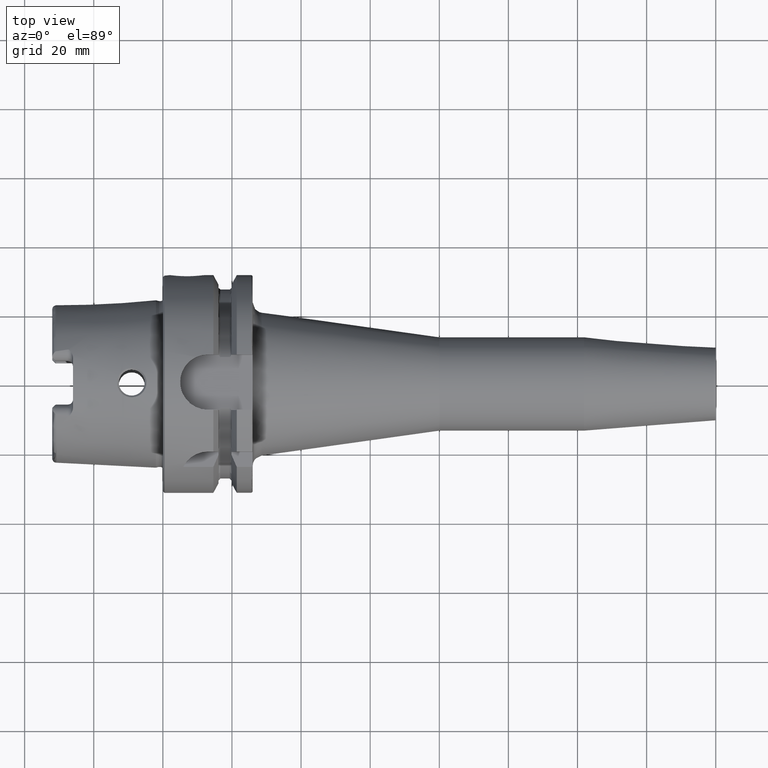
[diagram: clean part render]
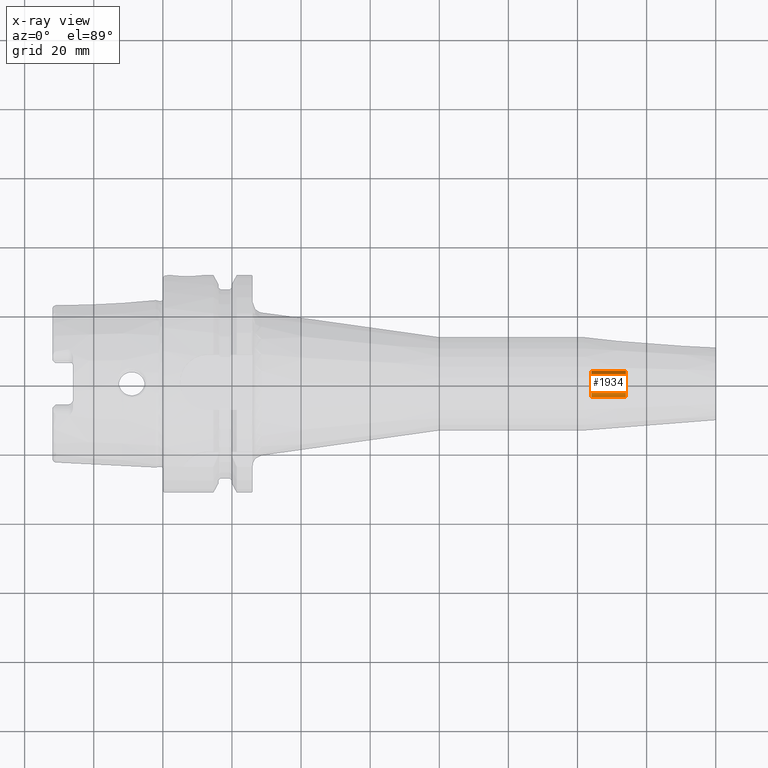
[diagram: x-ray — body ghosted, one internal face saturated and labeled with its STEP entity id]
A machine part, top view, then the same camera in x-ray: the body is ghosted and one INTERNAL B-rep face — a face not visible from any outside direction — is saturated and labeled: STEP entity #1934.
In plain terms, the highlighted cylindrical surface (bore or boss wall) has radius 3.775 mm, axis along (1, 0, 0).
Its self-contained STEP definition (entity closure, byte-faithful):
#99=CYLINDRICAL_SURFACE('',#2086,3.77500000000001);
#196=LINE('',#2964,#303);
#303=VECTOR('',#2367,3.77500000000001);
#420=FACE_OUTER_BOUND('',#537,.T.);
#537=EDGE_LOOP('',(#1324,#1325,#1326,#1327));
#670=CIRCLE('',#2087,3.77500000000001);
#671=CIRCLE('',#2088,3.775);
#799=VERTEX_POINT('',#2961);
#800=VERTEX_POINT('',#2963);
#1004=EDGE_CURVE('',#799,#799,#670,.T.);
#1005=EDGE_CURVE('',#799,#800,#196,.T.);
#1006=EDGE_CURVE('',#800,#800,#671,.T.);
#1324=ORIENTED_EDGE('',*,*,#1004,.T.);
#1325=ORIENTED_EDGE('',*,*,#1005,.T.);
#1326=ORIENTED_EDGE('',*,*,#1006,.F.);
#1327=ORIENTED_EDGE('',*,*,#1005,.F.);
#1934=ADVANCED_FACE('',(#420),#99,.F.);
#2086=AXIS2_PLACEMENT_3D('',#2960,#2363,#2364);
#2087=AXIS2_PLACEMENT_3D('',#2962,#2365,#2366);
#2088=AXIS2_PLACEMENT_3D('',#2965,#2368,#2369);
#2363=DIRECTION('center_axis',(1.,0.,0.));
#2364=DIRECTION('ref_axis',(0.,1.,0.));
#2365=DIRECTION('center_axis',(1.,0.,0.));
#2366=DIRECTION('ref_axis',(0.,0.,-1.));
#2367=DIRECTION('',(-1.,0.,0.));
#2368=DIRECTION('center_axis',(1.,0.,0.));
#2369=DIRECTION('ref_axis',(0.,0.,-1.));
#2960=CARTESIAN_POINT('Origin',(129.,0.,0.));
#2961=CARTESIAN_POINT('',(134.,-3.77500000000001,-4.62304166678127E-16));
#2962=CARTESIAN_POINT('Origin',(134.,0.,0.));
#2963=CARTESIAN_POINT('',(124.,-3.77500000000001,-4.62304166678127E-16));
#2964=CARTESIAN_POINT('',(129.,-3.77500000000001,-4.62304166678127E-16));
#2965=CARTESIAN_POINT('Origin',(124.,0.,0.));